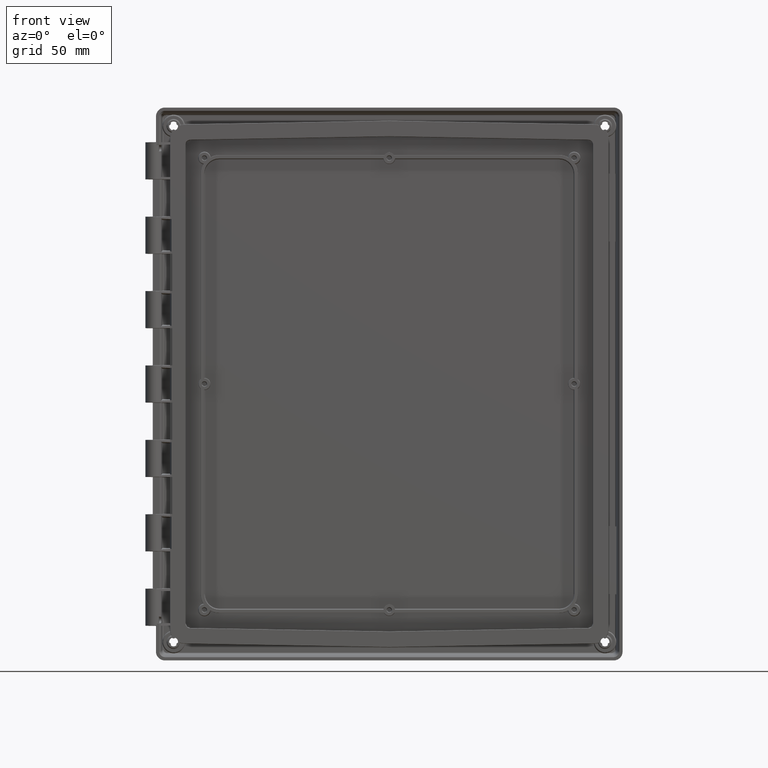
[diagram: clean part render]
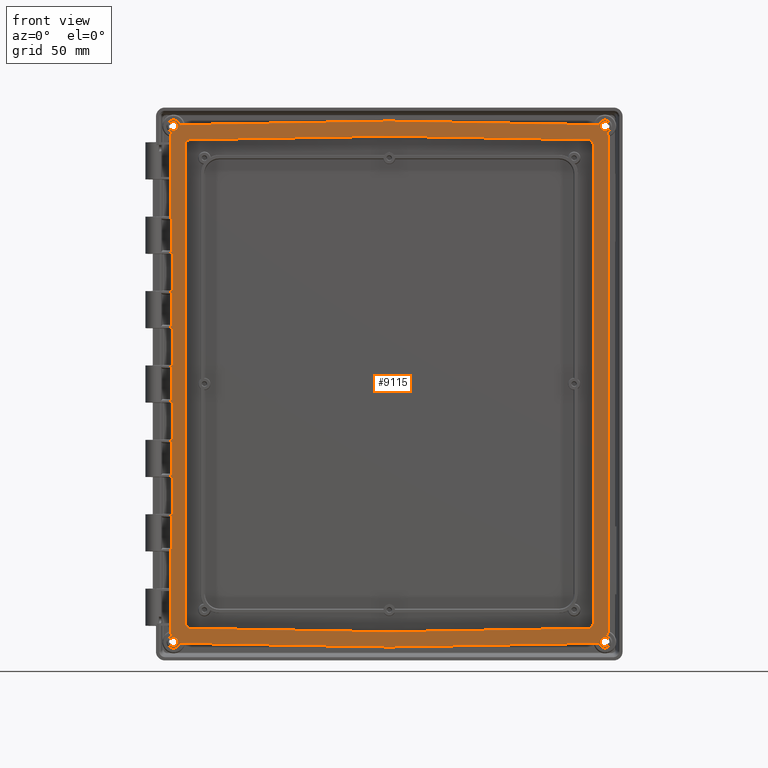
[diagram: same view with one face highlighted and labeled with its STEP entity id]
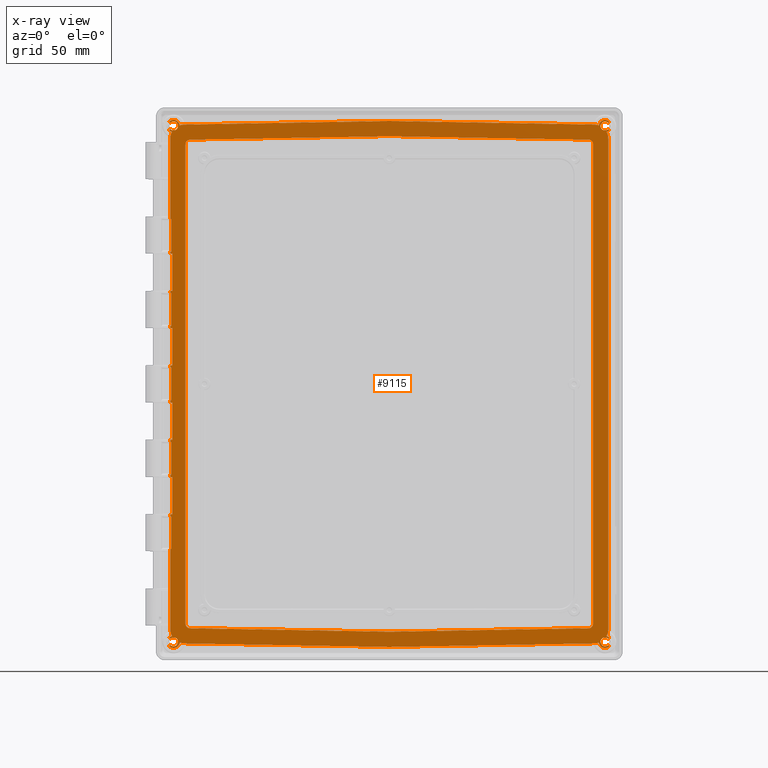
[diagram: x-ray of the same camera — body ghosted, the highlighted face saturated]
A machine part, front view. The second image highlights one B-rep face of the part: STEP entity #9115.
The next image is the same camera in x-ray: the body ghosted, the highlighted face saturated — about 0% of this face is hidden behind the body in this view.
In plain terms, the highlighted planar face has unit normal (0, -1, 0).
Its self-contained STEP definition (entity closure, byte-faithful):
#1129=DIRECTION('',(0.E0,1.082787128287E-14,1.E0));
#1130=VECTOR('',#1129,1.5E0);
#1131=CARTESIAN_POINT('',(-1.354610999578E2,-1.631822557993E-14,-1.28E2));
#1132=LINE('',#1131,#1130);
#1133=DIRECTION('',(9.998476951564E-1,0.E0,1.745240643728E-2));
#1134=VECTOR('',#1133,1.231340067071E2);
#1135=CARTESIAN_POINT('',(-1.231152528015E2,0.E0,1.510514199534E2));
#1136=LINE('',#1135,#1134);
#1137=DIRECTION('',(0.E0,0.E0,1.E0));
#1138=VECTOR('',#1137,2.961074082170E2);
#1139=CARTESIAN_POINT('',(-1.260610999578E2,0.E0,-1.480537041085E2));
#1140=LINE('',#1139,#1138);
#1141=DIRECTION('',(-9.998476951564E-1,0.E0,1.745240643728E-2));
#1142=VECTOR('',#1141,1.231340067071E2);
#1143=CARTESIAN_POINT('',(8.289665250535E-14,0.E0,-1.532004046847E2));
#1144=LINE('',#1143,#1142);
#1145=DIRECTION('',(-9.998476951564E-1,0.E0,-1.745240643728E-2));
#1146=VECTOR('',#1145,1.231340067071E2);
#1147=CARTESIAN_POINT('',(1.231152528015E2,0.E0,-1.510514199534E2));
#1148=LINE('',#1147,#1146);
#1149=DIRECTION('',(0.E0,0.E0,-1.E0));
#1150=VECTOR('',#1149,2.961074082170E2);
#1151=CARTESIAN_POINT('',(1.260610999578E2,0.E0,1.480537041085E2));
#1152=LINE('',#1151,#1150);
#1153=DIRECTION('',(9.998476951564E-1,0.E0,-1.745240643728E-2));
#1154=VECTOR('',#1153,1.231340067071E2);
#1155=CARTESIAN_POINT('',(-7.925512098457E-13,0.E0,1.532004046847E2));
#1156=LINE('',#1155,#1154);
#1157=CARTESIAN_POINT('',(1.3536E2,0.E0,1.569382623085E2));
#1158=DIRECTION('',(0.E0,-1.E0,0.E0));
#1159=DIRECTION('',(1.E0,0.E0,0.E0));
#1160=AXIS2_PLACEMENT_3D('',#1157,#1158,#1159);
#1162=DIRECTION('',(0.E0,-2.537500953473E-14,-1.E0));
#1163=VECTOR('',#1162,2.333472803848E-1);
#1164=CARTESIAN_POINT('',(1.3586E2,0.E0,1.569382623085E2));
#1165=LINE('',#1164,#1163);
#1166=DIRECTION('',(0.E0,3.552501334861E-14,1.E0));
#1167=VECTOR('',#1166,2.333472803849E-1);
#1168=CARTESIAN_POINT('',(1.3586E2,0.E0,-1.569382623085E2));
#1169=LINE('',#1168,#1167);
#1170=CARTESIAN_POINT('',(1.3536E2,0.E0,-1.569382623085E2));
#1171=DIRECTION('',(0.E0,-1.E0,0.E0));
#1172=DIRECTION('',(-6.153846153847E-1,0.E0,-7.882269819968E-1));
#1173=AXIS2_PLACEMENT_3D('',#1170,#1171,#1172);
#1175=CARTESIAN_POINT('',(1.337704113155E2,0.E0,-1.567807974419E2));
#1176=CARTESIAN_POINT('',(1.334482209406E2,0.E0,-1.567321690029E2));
#1177=CARTESIAN_POINT('',(1.328281634788E2,0.E0,-1.567482090161E2));
#1178=CARTESIAN_POINT('',(1.319277151662E2,0.E0,-1.570887051789E2));
#1179=CARTESIAN_POINT('',(1.312029897614E2,0.E0,-1.577058635423E2));
#1180=CARTESIAN_POINT('',(1.307240471865E2,0.E0,-1.585496003022E2));
#1181=CARTESIAN_POINT('',(1.306160350347E2,0.E0,-1.591402491613E2));
#1182=CARTESIAN_POINT('',(1.306109552218E2,0.E0,-1.594597203885E2));
#1184=CARTESIAN_POINT('',(1.3536E2,0.E0,-1.620617376915E2));
#1185=DIRECTION('',(0.E0,-1.E0,0.E0));
#1186=DIRECTION('',(1.E0,0.E0,5.684341886081E-14));
#1187=AXIS2_PLACEMENT_3D('',#1184,#1185,#1186);
#1189=DIRECTION('',(0.E0,0.E0,1.E0));
#1190=VECTOR('',#1189,2.333472803849E-1);
#1191=CARTESIAN_POINT('',(1.3586E2,0.E0,-1.622950849719E2));
#1192=LINE('',#1191,#1190);
#1193=DIRECTION('',(9.998476951564E-1,0.E0,1.745240643728E-2));
#1194=VECTOR('',#1193,1.268392665338E2);
#1195=CARTESIAN_POINT('',(-7.925512098457E-13,0.E0,-1.626018365683E2));
#1196=LINE('',#1195,#1194);
#1197=DIRECTION('',(9.998476951564E-1,0.E0,-1.745240643728E-2));
#1198=VECTOR('',#1197,1.266428468077E2);
#1199=CARTESIAN_POINT('',(-1.266235584888E2,0.E0,-1.603916141334E2));
#1200=LINE('',#1199,#1198);
#1201=DIRECTION('',(0.E0,-3.552501334862E-14,1.E0));
#1202=VECTOR('',#1201,2.333472803848E-1);
#1203=CARTESIAN_POINT('',(-1.3586E2,0.E0,-1.622950849719E2));
#1204=LINE('',#1203,#1202);
#1205=CARTESIAN_POINT('',(-1.3536E2,0.E0,-1.620617376915E2));
#1206=DIRECTION('',(0.E0,-1.E0,0.E0));
#1207=DIRECTION('',(6.153846153845E-1,0.E0,7.882269819970E-1));
#1208=AXIS2_PLACEMENT_3D('',#1205,#1206,#1207);
#1210=CARTESIAN_POINT('',(-1.3336E2,0.E0,-1.595E2));
#1211=DIRECTION('',(0.E0,-1.E0,0.E0));
#1212=DIRECTION('',(9.990655107185E-1,0.E0,4.322158364483E-2));
#1213=AXIS2_PLACEMENT_3D('',#1210,#1211,#1212);
#1215=CARTESIAN_POINT('',(-1.3536E2,0.E0,-1.569382623085E2));
#1216=DIRECTION('',(0.E0,-1.E0,0.E0));
#1217=DIRECTION('',(-1.E0,0.E0,-5.684341886081E-14));
#1218=AXIS2_PLACEMENT_3D('',#1215,#1216,#1217);
#1220=DIRECTION('',(0.E0,0.E0,1.E0));
#1221=VECTOR('',#1220,2.333472803849E-1);
#1222=CARTESIAN_POINT('',(-1.3586E2,0.E0,-1.569382623085E2));
#1223=LINE('',#1222,#1221);
#1224=DIRECTION('',(0.E0,0.E0,-1.E0));
#1225=VECTOR('',#1224,2.E1);
#1226=CARTESIAN_POINT('',(-1.354610999578E2,-1.631822557993E-14,-1.28E2));
#1227=LINE('',#1226,#1225);
#1228=DIRECTION('',(0.E0,0.E0,-1.E0));
#1229=VECTOR('',#1228,2.E1);
#1230=CARTESIAN_POINT('',(-1.354610999578E2,0.E0,1.48E2));
#1231=LINE('',#1230,#1229);
#1232=DIRECTION('',(0.E0,3.552501334862E-14,-1.E0));
#1233=VECTOR('',#1232,2.333472803848E-1);
#1234=CARTESIAN_POINT('',(-1.3586E2,0.E0,1.569382623085E2));
#1235=LINE('',#1234,#1233);
#1236=CARTESIAN_POINT('',(-1.3536E2,0.E0,1.569382623085E2));
#1237=DIRECTION('',(0.E0,-1.E0,0.E0));
#1238=DIRECTION('',(6.153846153846E-1,0.E0,7.882269819969E-1));
#1239=AXIS2_PLACEMENT_3D('',#1236,#1237,#1238);
#1241=CARTESIAN_POINT('',(-1.337704113155E2,0.E0,1.567807974419E2));
#1242=CARTESIAN_POINT('',(-1.334482209406E2,0.E0,1.567321690029E2));
#1243=CARTESIAN_POINT('',(-1.328281634788E2,0.E0,1.567482090161E2));
#1244=CARTESIAN_POINT('',(-1.319277151662E2,0.E0,1.570887051789E2));
#1245=CARTESIAN_POINT('',(-1.312029897614E2,0.E0,1.577058635423E2));
#1246=CARTESIAN_POINT('',(-1.307240471865E2,0.E0,1.585496003022E2));
#1247=CARTESIAN_POINT('',(-1.306160350347E2,0.E0,1.591402491613E2));
#1248=CARTESIAN_POINT('',(-1.306109552218E2,0.E0,1.594597203885E2));
#1250=CARTESIAN_POINT('',(-1.3536E2,0.E0,1.620617376915E2));
#1251=DIRECTION('',(0.E0,-1.E0,0.E0));
#1252=DIRECTION('',(-1.E0,0.E0,0.E0));
#1253=AXIS2_PLACEMENT_3D('',#1250,#1251,#1252);
#1255=DIRECTION('',(0.E0,0.E0,-1.E0));
#1256=VECTOR('',#1255,2.333472803849E-1);
#1257=CARTESIAN_POINT('',(-1.3586E2,0.E0,1.622950849719E2));
#1258=LINE('',#1257,#1256);
#1259=DIRECTION('',(-9.998476951564E-1,0.E0,-1.745240643728E-2));
#1260=VECTOR('',#1259,1.268392665338E2);
#1261=CARTESIAN_POINT('',(0.E0,0.E0,1.626018365683E2));
#1262=LINE('',#1261,#1260);
#1263=DIRECTION('',(-9.998476951564E-1,0.E0,1.745240643728E-2));
#1264=VECTOR('',#1263,1.268392665338E2);
#1265=CARTESIAN_POINT('',(1.268199482992E2,0.E0,1.603881861365E2));
#1266=LINE('',#1265,#1264);
#1267=DIRECTION('',(0.E0,0.E0,-1.E0));
#1268=VECTOR('',#1267,2.333472803849E-1);
#1269=CARTESIAN_POINT('',(1.3586E2,0.E0,1.622950849719E2));
#1270=LINE('',#1269,#1268);
#1271=CARTESIAN_POINT('',(1.3536E2,0.E0,1.620617376915E2));
#1272=DIRECTION('',(0.E0,-1.E0,0.E0));
#1273=DIRECTION('',(-6.153846153847E-1,0.E0,-7.882269819969E-1));
#1274=AXIS2_PLACEMENT_3D('',#1271,#1272,#1273);
#1276=CARTESIAN_POINT('',(1.3336E2,0.E0,1.595E2));
#1277=DIRECTION('',(0.E0,-1.E0,0.E0));
#1278=DIRECTION('',(-9.998736079999E-1,0.E0,-1.589867998299E-2));
#1279=AXIS2_PLACEMENT_3D('',#1276,#1277,#1278);
#1289=CARTESIAN_POINT('',(-1.260610999578E2,0.E0,1.480537041085E2));
#1290=CARTESIAN_POINT('',(-1.260610999578E2,0.E0,1.490358027390E2));
#1291=CARTESIAN_POINT('',(-1.253240205356E2,0.E0,1.502756740691E2));
#1292=CARTESIAN_POINT('',(-1.240972018536E2,0.E0,1.510342799689E2));
#1293=CARTESIAN_POINT('',(-1.231152528015E2,0.E0,1.510514199534E2));
#1487=CARTESIAN_POINT('',(1.231152528015E2,0.E0,1.510514199534E2));
#1488=CARTESIAN_POINT('',(1.240972018536E2,0.E0,1.510342799689E2));
#1489=CARTESIAN_POINT('',(1.253240205356E2,0.E0,1.502756740691E2));
#1490=CARTESIAN_POINT('',(1.260610999578E2,0.E0,1.490358027390E2));
#1491=CARTESIAN_POINT('',(1.260610999578E2,0.E0,1.480537041085E2));
#1505=CARTESIAN_POINT('',(1.260610999578E2,0.E0,-1.480537041085E2));
#1506=CARTESIAN_POINT('',(1.260610999578E2,0.E0,-1.490358027390E2));
#1507=CARTESIAN_POINT('',(1.253240205356E2,0.E0,-1.502756740691E2));
#1508=CARTESIAN_POINT('',(1.240972018536E2,0.E0,-1.510342799689E2));
#1509=CARTESIAN_POINT('',(1.231152528015E2,0.E0,-1.510514199534E2));
#1531=CARTESIAN_POINT('',(-1.231152528015E2,0.E0,-1.510514199534E2));
#1532=CARTESIAN_POINT('',(-1.240972018536E2,0.E0,-1.510342799689E2));
#1533=CARTESIAN_POINT('',(-1.253240205356E2,0.E0,-1.502756740691E2));
#1534=CARTESIAN_POINT('',(-1.260610999578E2,0.E0,-1.490358027390E2));
#1535=CARTESIAN_POINT('',(-1.260610999578E2,0.E0,-1.480537041085E2));
#2829=CARTESIAN_POINT('',(1.350523076923E2,0.E0,-1.616676242005E2));
#2830=CARTESIAN_POINT('',(1.348127118924E2,0.E0,-1.618546814474E2));
#2831=CARTESIAN_POINT('',(1.343015865102E2,0.E0,-1.621328706006E2));
#2832=CARTESIAN_POINT('',(1.334179866728E2,0.E0,-1.622977130184E2));
#2833=CARTESIAN_POINT('',(1.325338581723E2,0.E0,-1.621726199275E2));
#2834=CARTESIAN_POINT('',(1.317321026019E2,0.E0,-1.617753558528E2));
#2835=CARTESIAN_POINT('',(1.310961644881E2,0.E0,-1.611445971458E2));
#2836=CARTESIAN_POINT('',(1.306931902211E2,0.E0,-1.603429656091E2));
#2837=CARTESIAN_POINT('',(1.306061628792E2,0.E0,-1.597611125138E2));
#2838=CARTESIAN_POINT('',(1.306109552218E2,0.E0,-1.594597203885E2));
#2904=CARTESIAN_POINT('',(1.3336E2,0.E0,-1.595E2));
#2905=DIRECTION('',(0.E0,1.E0,0.E0));
#2906=DIRECTION('',(1.492404783669E-1,0.E0,9.888009302265E-1));
#2907=AXIS2_PLACEMENT_3D('',#2904,#2905,#2906);
#3863=CARTESIAN_POINT('',(1.268199482992E2,0.E0,1.603881861365E2));
#3864=CARTESIAN_POINT('',(1.277843344238E2,0.E0,1.603713527141E2));
#3865=CARTESIAN_POINT('',(1.287206596066E2,0.E0,1.602006653499E2));
#3866=CARTESIAN_POINT('',(1.296288934613E2,0.E0,1.598759574405E2));
#4151=DIRECTION('',(1.E0,0.E0,0.E0));
#4152=VECTOR('',#4151,8.000000000002E-1);
#4153=CARTESIAN_POINT('',(-1.354610999578E2,0.E0,-5.6E1));
#4154=LINE('',#4153,#4152);
#4175=DIRECTION('',(-1.E0,0.E0,0.E0));
#4176=VECTOR('',#4175,8.000000000001E-1);
#4177=CARTESIAN_POINT('',(-1.346610999578E2,0.E0,-3.6E1));
#4178=LINE('',#4177,#4176);
#4203=DIRECTION('',(1.894780628694E-14,0.E0,1.E0));
#4204=VECTOR('',#4203,1.5E0);
#4205=CARTESIAN_POINT('',(-1.354610999578E2,0.E0,-3.6E1));
#4206=LINE('',#4205,#4204);
#4211=DIRECTION('',(3.789561257387E-14,0.E0,1.E0));
#4212=VECTOR('',#4211,1.5E0);
#4213=CARTESIAN_POINT('',(-1.354610999578E2,0.E0,-5.75E1));
#4214=LINE('',#4213,#4212);
#4237=DIRECTION('',(1.E0,0.E0,0.E0));
#4238=VECTOR('',#4237,1.251568121427E0);
#4239=CARTESIAN_POINT('',(-1.354610999578E2,0.E0,-3.45E1));
#4240=LINE('',#4239,#4238);
#4257=DIRECTION('',(-1.E0,0.E0,0.E0));
#4258=VECTOR('',#4257,1.251568121427E0);
#4259=CARTESIAN_POINT('',(-1.342095318364E2,0.E0,-1.15E1));
#4260=LINE('',#4259,#4258);
#4299=DIRECTION('',(1.894780628694E-14,0.E0,1.E0));
#4300=VECTOR('',#4299,1.5E0);
#4301=CARTESIAN_POINT('',(-1.354610999578E2,0.E0,1.E1));
#4302=LINE('',#4301,#4300);
#4307=DIRECTION('',(3.789561257387E-14,0.E0,1.E0));
#4308=VECTOR('',#4307,1.5E0);
#4309=CARTESIAN_POINT('',(-1.354610999578E2,0.E0,-1.15E1));
#4310=LINE('',#4309,#4308);
#4333=DIRECTION('',(1.E0,0.E0,0.E0));
#4334=VECTOR('',#4333,1.251568121427E0);
#4335=CARTESIAN_POINT('',(-1.354610999578E2,0.E0,1.15E1));
#4336=LINE('',#4335,#4334);
#4353=DIRECTION('',(-1.E0,0.E0,0.E0));
#4354=VECTOR('',#4353,1.251568121427E0);
#4355=CARTESIAN_POINT('',(-1.342095318364E2,0.E0,3.45E1));
#4356=LINE('',#4355,#4354);
#4395=DIRECTION('',(0.E0,0.E0,1.E0));
#4396=VECTOR('',#4395,1.5E0);
#4397=CARTESIAN_POINT('',(-1.354610999578E2,0.E0,5.6E1));
#4398=LINE('',#4397,#4396);
#4403=DIRECTION('',(5.684341886081E-14,0.E0,1.E0));
#4404=VECTOR('',#4403,1.5E0);
#4405=CARTESIAN_POINT('',(-1.354610999578E2,0.E0,3.45E1));
#4406=LINE('',#4405,#4404);
#4429=DIRECTION('',(1.E0,0.E0,0.E0));
#4430=VECTOR('',#4429,1.251568121427E0);
#4431=CARTESIAN_POINT('',(-1.354610999578E2,0.E0,5.75E1));
#4432=LINE('',#4431,#4430);
#4449=DIRECTION('',(-1.E0,0.E0,0.E0));
#4450=VECTOR('',#4449,1.251568121427E0);
#4451=CARTESIAN_POINT('',(-1.342095318364E2,0.E0,8.05E1));
#4452=LINE('',#4451,#4450);
#4491=DIRECTION('',(-9.473903143468E-14,-1.181955202527E-14,1.E0));
#4492=VECTOR('',#4491,1.5E0);
#4493=CARTESIAN_POINT('',(-1.354610999578E2,0.E0,1.02E2));
#4494=LINE('',#4493,#4492);
#4499=DIRECTION('',(3.789561257387E-14,0.E0,1.E0));
#4500=VECTOR('',#4499,1.5E0);
#4501=CARTESIAN_POINT('',(-1.354610999578E2,0.E0,8.05E1));
#4502=LINE('',#4501,#4500);
#4567=DIRECTION('',(3.789561257387E-14,0.E0,1.E0));
#4568=VECTOR('',#4567,1.5E0);
#4569=CARTESIAN_POINT('',(-1.354610999578E2,0.E0,1.265E2));
#4570=LINE('',#4569,#4568);
#4790=CARTESIAN_POINT('',(-1.296288934613E2,0.E0,1.598759574405E2));
#4791=CARTESIAN_POINT('',(-1.287206596066E2,0.E0,1.602006653499E2));
#4792=CARTESIAN_POINT('',(-1.277843344238E2,0.E0,1.603713527141E2));
#4793=CARTESIAN_POINT('',(-1.268199482992E2,0.E0,1.603881861365E2));
#4814=CARTESIAN_POINT('',(-1.3336E2,0.E0,1.595E2));
#4815=DIRECTION('',(0.E0,-1.E0,0.E0));
#4816=DIRECTION('',(-6.666666666667E-1,0.E0,-7.453559924999E-1));
#4817=AXIS2_PLACEMENT_3D('',#4814,#4815,#4816);
#4819=CARTESIAN_POINT('',(-1.3336E2,0.E0,1.595E2));
#4820=DIRECTION('',(0.E0,-1.E0,0.E0));
#4821=DIRECTION('',(9.949617436463E-1,0.E0,1.002553174664E-1));
#4822=AXIS2_PLACEMENT_3D('',#4819,#4820,#4821);
#4854=CARTESIAN_POINT('',(-1.350523076923E2,0.E0,1.616676242005E2));
#4855=CARTESIAN_POINT('',(-1.348127118924E2,0.E0,1.618546814474E2));
#4856=CARTESIAN_POINT('',(-1.343015865102E2,0.E0,1.621328706006E2));
#4857=CARTESIAN_POINT('',(-1.334179866728E2,0.E0,1.622977130184E2));
#4858=CARTESIAN_POINT('',(-1.325338581723E2,0.E0,1.621726199275E2));
#4859=CARTESIAN_POINT('',(-1.317321026019E2,0.E0,1.617753558528E2));
#4860=CARTESIAN_POINT('',(-1.310961644881E2,0.E0,1.611445971458E2));
#4861=CARTESIAN_POINT('',(-1.306931902211E2,0.E0,1.603429656091E2));
#4862=CARTESIAN_POINT('',(-1.306061628792E2,0.E0,1.597611125138E2));
#4863=CARTESIAN_POINT('',(-1.306109552218E2,0.E0,1.594597203885E2));
#4929=CARTESIAN_POINT('',(-1.3336E2,0.E0,1.595E2));
#4930=DIRECTION('',(0.E0,1.E0,0.E0));
#4931=DIRECTION('',(-1.492404783669E-1,0.E0,-9.888009302265E-1));
#4932=AXIS2_PLACEMENT_3D('',#4929,#4930,#4931);
#4995=CARTESIAN_POINT('',(1.3336E2,0.E0,1.595E2));
#4996=DIRECTION('',(0.E0,1.E0,0.E0));
#4997=DIRECTION('',(6.153846153846E-1,0.E0,-7.882269819969E-1));
#4998=AXIS2_PLACEMENT_3D('',#4995,#4996,#4997);
#5060=CARTESIAN_POINT('',(1.3336E2,0.E0,1.595E2));
#5061=DIRECTION('',(0.E0,1.E0,0.E0));
#5062=DIRECTION('',(-9.998736079999E-1,0.E0,-1.589867998299E-2));
#5063=AXIS2_PLACEMENT_3D('',#5060,#5061,#5062);
#5120=CARTESIAN_POINT('',(-1.3336E2,0.E0,-1.595E2));
#5121=DIRECTION('',(0.E0,1.E0,0.E0));
#5122=DIRECTION('',(-6.153846153846E-1,0.E0,7.882269819969E-1));
#5123=AXIS2_PLACEMENT_3D('',#5120,#5121,#5122);
#5187=CARTESIAN_POINT('',(-1.3336E2,0.E0,-1.595E2));
#5188=DIRECTION('',(0.E0,1.E0,0.E0));
#5189=DIRECTION('',(9.990655107185E-1,0.E0,4.322158364483E-2));
#5190=AXIS2_PLACEMENT_3D('',#5187,#5188,#5189);
#5209=CARTESIAN_POINT('',(-1.3336E2,0.E0,-1.595E2));
#5210=DIRECTION('',(0.E0,-1.E0,0.E0));
#5211=DIRECTION('',(-6.666666666667E-1,0.E0,-7.453559924999E-1));
#5212=AXIS2_PLACEMENT_3D('',#5209,#5210,#5211);
#5214=CARTESIAN_POINT('',(-1.3336E2,0.E0,-1.595E2));
#5215=DIRECTION('',(0.E0,-1.E0,0.E0));
#5216=DIRECTION('',(-2.441091685072E-1,0.E0,9.697477578477E-1));
#5217=AXIS2_PLACEMENT_3D('',#5214,#5215,#5216);
#5246=CARTESIAN_POINT('',(-1.354610999578E2,0.E0,-1.513984665988E2));
#5247=CARTESIAN_POINT('',(-1.354610999578E2,0.E0,-1.529917764422E2));
#5248=CARTESIAN_POINT('',(-1.350660714845E2,0.E0,-1.544801564603E2));
#5249=CARTESIAN_POINT('',(-1.342754093819E2,0.E0,-1.558634459081E2));
#5285=CARTESIAN_POINT('',(-1.296237725605E2,0.E0,-1.598210989258E2));
#5286=CARTESIAN_POINT('',(-1.286564538049E2,0.E0,-1.601834791242E2));
#5287=CARTESIAN_POINT('',(-1.276563701762E2,0.E0,-1.603735863384E2));
#5288=CARTESIAN_POINT('',(-1.266235584888E2,0.E0,-1.603916141334E2));
#5298=DIRECTION('',(0.E0,0.E0,1.E0));
#5299=VECTOR('',#5298,1.898466598836E0);
#5300=CARTESIAN_POINT('',(-1.354610999578E2,0.E0,-1.513984665988E2));
#5301=LINE('',#5300,#5299);
#5323=DIRECTION('',(-1.894780628694E-14,0.E0,1.E0));
#5324=VECTOR('',#5323,1.5E0);
#5325=CARTESIAN_POINT('',(-1.354610999578E2,0.E0,-1.495E2));
#5326=LINE('',#5325,#5324);
#5418=CARTESIAN_POINT('',(1.296288934613E2,0.E0,-1.598759574405E2));
#5419=CARTESIAN_POINT('',(1.287206596066E2,0.E0,-1.602006653499E2));
#5420=CARTESIAN_POINT('',(1.277843344238E2,0.E0,-1.603713527141E2));
#5421=CARTESIAN_POINT('',(1.268199482992E2,0.E0,-1.603881861365E2));
#5676=CARTESIAN_POINT('',(1.354610999578E2,0.E0,-1.515948863249E2));
#5677=CARTESIAN_POINT('',(1.354610999578E2,0.E0,-1.531205992297E2));
#5678=CARTESIAN_POINT('',(1.350896464781E2,0.E0,-1.545496844750E2));
#5679=CARTESIAN_POINT('',(1.343461773515E2,0.E0,-1.558819958221E2));
#5701=CARTESIAN_POINT('',(1.3336E2,0.E0,-1.595E2));
#5702=DIRECTION('',(0.E0,-1.E0,0.E0));
#5703=DIRECTION('',(6.666666666667E-1,0.E0,7.453559924999E-1));
#5704=AXIS2_PLACEMENT_3D('',#5701,#5702,#5703);
#5706=CARTESIAN_POINT('',(1.3336E2,0.E0,-1.595E2));
#5707=DIRECTION('',(0.E0,-1.E0,0.E0));
#5708=DIRECTION('',(-9.949617436463E-1,0.E0,-1.002553174664E-1));
#5709=AXIS2_PLACEMENT_3D('',#5706,#5707,#5708);
#5752=DIRECTION('',(0.E0,0.E0,-1.E0));
#5753=VECTOR('',#5752,3.031897726499E2);
#5754=CARTESIAN_POINT('',(1.354610999578E2,0.E0,1.515948863249E2));
#5755=LINE('',#5754,#5753);
#5845=CARTESIAN_POINT('',(1.343461773515E2,0.E0,1.558819958221E2));
#5846=CARTESIAN_POINT('',(1.350896464781E2,0.E0,1.545496844750E2));
#5847=CARTESIAN_POINT('',(1.354610999578E2,0.E0,1.531205992297E2));
#5848=CARTESIAN_POINT('',(1.354610999578E2,0.E0,1.515948863249E2));
#5868=CARTESIAN_POINT('',(1.3336E2,0.E0,1.595E2));
#5869=DIRECTION('',(0.E0,-1.E0,0.E0));
#5870=DIRECTION('',(6.666666666667E-1,0.E0,7.453559924999E-1));
#5871=AXIS2_PLACEMENT_3D('',#5868,#5869,#5870);
#5873=CARTESIAN_POINT('',(1.3336E2,0.E0,1.595E2));
#5874=DIRECTION('',(0.E0,-1.E0,0.E0));
#5875=DIRECTION('',(2.629806270758E-1,0.E0,-9.648011141074E-1));
#5876=AXIS2_PLACEMENT_3D('',#5873,#5874,#5875);
#6053=CARTESIAN_POINT('',(-1.354610999578E2,0.E0,1.515948863249E2));
#6054=CARTESIAN_POINT('',(-1.354610999578E2,0.E0,1.531205992297E2));
#6055=CARTESIAN_POINT('',(-1.350896464781E2,0.E0,1.545496844750E2));
#6056=CARTESIAN_POINT('',(-1.343461773515E2,0.E0,1.558819958221E2));
#6082=DIRECTION('',(0.E0,1.029909078822E-14,1.E0));
#6083=VECTOR('',#6082,2.094886324935E0);
#6084=CARTESIAN_POINT('',(-1.354610999578E2,-1.777516760943E-14,1.495E2));
#6085=LINE('',#6084,#6083);
#6107=DIRECTION('',(-1.136868377216E-13,-1.417695416206E-14,1.E0));
#6108=VECTOR('',#6107,1.5E0);
#6109=CARTESIAN_POINT('',(-1.354610999578E2,0.E0,1.48E2));
#6110=LINE('',#6109,#6108);
#6161=DIRECTION('',(0.E0,0.E0,1.E0));
#6162=VECTOR('',#6161,2.3E1);
#6163=CARTESIAN_POINT('',(-1.354610999578E2,-1.425988108595E-14,1.035E2));
#6164=LINE('',#6163,#6162);
#6183=DIRECTION('',(-1.E0,0.E0,0.E0));
#6184=VECTOR('',#6183,8.000000000001E-1);
#6185=CARTESIAN_POINT('',(-1.346610999578E2,0.E0,1.02E2));
#6186=LINE('',#6185,#6184);
#6213=DIRECTION('',(1.E0,0.E0,0.E0));
#6214=VECTOR('',#6213,8.000000000001E-1);
#6215=CARTESIAN_POINT('',(-1.354610999578E2,0.E0,8.2E1));
#6216=LINE('',#6215,#6214);
#6229=DIRECTION('',(0.E0,0.E0,1.E0));
#6230=VECTOR('',#6229,2.E1);
#6231=CARTESIAN_POINT('',(-1.346610999578E2,0.E0,8.2E1));
#6232=LINE('',#6231,#6230);
#6245=DIRECTION('',(0.E0,0.E0,1.E0));
#6246=VECTOR('',#6245,2.3E1);
#6247=CARTESIAN_POINT('',(-1.342095318364E2,0.E0,5.75E1));
#6248=LINE('',#6247,#6246);
#6275=DIRECTION('',(-1.E0,0.E0,0.E0));
#6276=VECTOR('',#6275,8.000000000001E-1);
#6277=CARTESIAN_POINT('',(-1.346610999578E2,0.E0,5.6E1));
#6278=LINE('',#6277,#6276);
#6305=DIRECTION('',(1.E0,0.E0,0.E0));
#6306=VECTOR('',#6305,8.000000000001E-1);
#6307=CARTESIAN_POINT('',(-1.354610999578E2,0.E0,3.6E1));
#6308=LINE('',#6307,#6306);
#6321=DIRECTION('',(0.E0,0.E0,1.E0));
#6322=VECTOR('',#6321,2.E1);
#6323=CARTESIAN_POINT('',(-1.346610999578E2,0.E0,3.6E1));
#6324=LINE('',#6323,#6322);
#6337=DIRECTION('',(0.E0,0.E0,1.E0));
#6338=VECTOR('',#6337,2.3E1);
#6339=CARTESIAN_POINT('',(-1.342095318364E2,0.E0,1.15E1));
#6340=LINE('',#6339,#6338);
#6367=DIRECTION('',(-1.E0,0.E0,0.E0));
#6368=VECTOR('',#6367,8.000000000001E-1);
#6369=CARTESIAN_POINT('',(-1.346610999578E2,0.E0,1.E1));
#6370=LINE('',#6369,#6368);
#6397=DIRECTION('',(1.E0,0.E0,0.E0));
#6398=VECTOR('',#6397,8.000000000002E-1);
#6399=CARTESIAN_POINT('',(-1.354610999578E2,0.E0,-1.E1));
#6400=LINE('',#6399,#6398);
#6413=DIRECTION('',(0.E0,0.E0,1.E0));
#6414=VECTOR('',#6413,2.E1);
#6415=CARTESIAN_POINT('',(-1.346610999578E2,0.E0,-1.E1));
#6416=LINE('',#6415,#6414);
#6429=DIRECTION('',(0.E0,0.E0,1.E0));
#6430=VECTOR('',#6429,2.3E1);
#6431=CARTESIAN_POINT('',(-1.342095318364E2,0.E0,-3.45E1));
#6432=LINE('',#6431,#6430);
#6457=DIRECTION('',(-1.E0,0.E0,0.E0));
#6458=VECTOR('',#6457,1.251568121427E0);
#6459=CARTESIAN_POINT('',(-1.342095318364E2,0.E0,-5.75E1));
#6460=LINE('',#6459,#6458);
#6517=DIRECTION('',(1.E0,0.E0,0.E0));
#6518=VECTOR('',#6517,1.251568121427E0);
#6519=CARTESIAN_POINT('',(-1.354610999578E2,0.E0,-8.05E1));
#6520=LINE('',#6519,#6518);
#6525=DIRECTION('',(1.894780628694E-14,0.E0,1.E0));
#6526=VECTOR('',#6525,1.5E0);
#6527=CARTESIAN_POINT('',(-1.354610999578E2,0.E0,-8.2E1));
#6528=LINE('',#6527,#6526);
#6533=DIRECTION('',(5.684341886081E-14,0.E0,1.E0));
#6534=VECTOR('',#6533,1.5E0);
#6535=CARTESIAN_POINT('',(-1.354610999578E2,0.E0,-1.035E2));
#6536=LINE('',#6535,#6534);
#6551=DIRECTION('',(-1.E0,0.E0,0.E0));
#6552=VECTOR('',#6551,8.000000000001E-1);
#6553=CARTESIAN_POINT('',(-1.346610999578E2,0.E0,-8.2E1));
#6554=LINE('',#6553,#6552);
#6581=DIRECTION('',(1.E0,0.E0,0.E0));
#6582=VECTOR('',#6581,8.000000000002E-1);
#6583=CARTESIAN_POINT('',(-1.354610999578E2,0.E0,-1.02E2));
#6584=LINE('',#6583,#6582);
#6597=DIRECTION('',(0.E0,0.E0,1.E0));
#6598=VECTOR('',#6597,2.E1);
#6599=CARTESIAN_POINT('',(-1.346610999578E2,0.E0,-1.02E2));
#6600=LINE('',#6599,#6598);
#6663=DIRECTION('',(0.E0,0.E0,1.E0));
#6664=VECTOR('',#6663,2.3E1);
#6665=CARTESIAN_POINT('',(-1.354610999578E2,0.E0,-1.265E2));
#6666=LINE('',#6665,#6664);
#6683=DIRECTION('',(0.E0,0.E0,1.E0));
#6684=VECTOR('',#6683,2.3E1);
#6685=CARTESIAN_POINT('',(-1.342095318364E2,0.E0,-8.05E1));
#6686=LINE('',#6685,#6684);
#6695=DIRECTION('',(0.E0,0.E0,1.E0));
#6696=VECTOR('',#6695,2.E1);
#6697=CARTESIAN_POINT('',(-1.346610999578E2,0.E0,-5.6E1));
#6698=LINE('',#6697,#6696);
#6912=CARTESIAN_POINT('',(-1.354610999578E2,0.E0,-1.E1));
#6914=VERTEX_POINT('',#6912);
#6916=CARTESIAN_POINT('',(-1.354610999578E2,0.E0,1.E1));
#6918=VERTEX_POINT('',#6916);
#6920=CARTESIAN_POINT('',(-1.354610999578E2,0.E0,5.6E1));
#6922=VERTEX_POINT('',#6920);
#6924=CARTESIAN_POINT('',(-1.354610999578E2,0.E0,3.6E1));
#6926=VERTEX_POINT('',#6924);
#6928=CARTESIAN_POINT('',(-1.354610999578E2,0.E0,1.02E2));
#6930=VERTEX_POINT('',#6928);
#6936=CARTESIAN_POINT('',(-1.354610999578E2,0.E0,8.2E1));
#6938=VERTEX_POINT('',#6936);
#7016=CARTESIAN_POINT('',(-1.354610999578E2,0.E0,-1.02E2));
#7017=CARTESIAN_POINT('',(-1.346610999578E2,0.E0,-1.02E2));
#7018=VERTEX_POINT('',#7016);
#7019=VERTEX_POINT('',#7017);
#7020=CARTESIAN_POINT('',(-1.354610999578E2,0.E0,-3.45E1));
#7021=CARTESIAN_POINT('',(-1.342095318364E2,0.E0,-3.45E1));
#7022=VERTEX_POINT('',#7020);
#7023=VERTEX_POINT('',#7021);
#7024=CARTESIAN_POINT('',(-1.354610999578E2,0.E0,-3.6E1));
#7025=VERTEX_POINT('',#7024);
#7026=CARTESIAN_POINT('',(-1.346610999578E2,0.E0,-3.6E1));
#7027=VERTEX_POINT('',#7026);
#7028=CARTESIAN_POINT('',(-1.346610999578E2,0.E0,-5.6E1));
#7029=VERTEX_POINT('',#7028);
#7030=CARTESIAN_POINT('',(-1.354610999578E2,0.E0,-5.6E1));
#7031=VERTEX_POINT('',#7030);
#7032=CARTESIAN_POINT('',(-1.346610999578E2,0.E0,-1.E1));
#7033=CARTESIAN_POINT('',(-1.346610999578E2,0.E0,1.E1));
#7034=VERTEX_POINT('',#7032);
#7035=VERTEX_POINT('',#7033);
#7036=CARTESIAN_POINT('',(-1.354610999578E2,0.E0,-1.15E1));
#7037=VERTEX_POINT('',#7036);
#7038=CARTESIAN_POINT('',(-1.342095318364E2,0.E0,-1.15E1));
#7039=VERTEX_POINT('',#7038);
#7040=CARTESIAN_POINT('',(-1.346610999578E2,0.E0,1.02E2));
#7041=VERTEX_POINT('',#7040);
#7042=CARTESIAN_POINT('',(-1.346610999578E2,0.E0,8.2E1));
#7043=VERTEX_POINT('',#7042);
#7044=CARTESIAN_POINT('',(-1.354610999578E2,0.E0,8.05E1));
#7045=VERTEX_POINT('',#7044);
#7046=CARTESIAN_POINT('',(-1.342095318364E2,0.E0,8.05E1));
#7047=VERTEX_POINT('',#7046);
#7048=CARTESIAN_POINT('',(-1.342095318364E2,0.E0,5.75E1));
#7049=VERTEX_POINT('',#7048);
#7050=CARTESIAN_POINT('',(-1.354610999578E2,0.E0,5.75E1));
#7051=VERTEX_POINT('',#7050);
#7052=CARTESIAN_POINT('',(-1.346610999578E2,0.E0,5.6E1));
#7053=VERTEX_POINT('',#7052);
#7054=CARTESIAN_POINT('',(-1.346610999578E2,0.E0,3.6E1));
#7055=VERTEX_POINT('',#7054);
#7056=CARTESIAN_POINT('',(-1.354610999578E2,0.E0,3.45E1));
#7057=VERTEX_POINT('',#7056);
#7058=CARTESIAN_POINT('',(-1.342095318364E2,0.E0,3.45E1));
#7059=VERTEX_POINT('',#7058);
#7060=CARTESIAN_POINT('',(-1.342095318364E2,0.E0,1.15E1));
#7061=VERTEX_POINT('',#7060);
#7062=CARTESIAN_POINT('',(-1.354610999578E2,0.E0,1.15E1));
#7063=VERTEX_POINT('',#7062);
#7064=CARTESIAN_POINT('',(-1.346610999578E2,0.E0,-8.2E1));
#7065=CARTESIAN_POINT('',(-1.354610999578E2,0.E0,-8.2E1));
#7066=VERTEX_POINT('',#7064);
#7067=VERTEX_POINT('',#7065);
#7068=CARTESIAN_POINT('',(-1.354610999578E2,0.E0,-8.05E1));
#7069=CARTESIAN_POINT('',(-1.342095318364E2,0.E0,-8.05E1));
#7070=VERTEX_POINT('',#7068);
#7071=VERTEX_POINT('',#7069);
#7072=CARTESIAN_POINT('',(-1.354610999578E2,0.E0,-5.75E1));
#7073=VERTEX_POINT('',#7072);
#7074=CARTESIAN_POINT('',(-1.342095318364E2,0.E0,-5.75E1));
#7075=VERTEX_POINT('',#7074);
#7228=CARTESIAN_POINT('',(1.306103475780E2,0.E0,1.594562786300E2));
#7229=CARTESIAN_POINT('',(1.337704113155E2,0.E0,1.567807974419E2));
#7230=VERTEX_POINT('',#7228);
#7231=VERTEX_POINT('',#7229);
#7236=VERTEX_POINT('',#1175);
#7237=VERTEX_POINT('',#1182);
#7238=CARTESIAN_POINT('',(-1.306125698455E2,0.E0,-1.593811406450E2));
#7239=CARTESIAN_POINT('',(-1.336827811179E2,0.E0,-1.567690089070E2));
#7240=VERTEX_POINT('',#7238);
#7241=VERTEX_POINT('',#7239);
#7242=VERTEX_POINT('',#1241);
#7243=VERTEX_POINT('',#1248);
#7478=CARTESIAN_POINT('',(-1.354610999578E2,-1.631822557993E-14,-1.28E2));
#7479=VERTEX_POINT('',#7478);
#7480=CARTESIAN_POINT('',(-1.354610999578E2,0.E0,1.48E2));
#7481=VERTEX_POINT('',#7480);
#7502=CARTESIAN_POINT('',(-1.354610999578E2,0.E0,-1.035E2));
#7503=VERTEX_POINT('',#7502);
#7504=CARTESIAN_POINT('',(-1.354610999578E2,0.E0,-1.265E2));
#7505=VERTEX_POINT('',#7504);
#7506=CARTESIAN_POINT('',(-7.925512098457E-13,0.E0,-1.626018365683E2));
#7507=CARTESIAN_POINT('',(1.268199482992E2,0.E0,-1.603881861365E2));
#7508=VERTEX_POINT('',#7506);
#7509=VERTEX_POINT('',#7507);
#7510=CARTESIAN_POINT('',(-1.354610999578E2,-1.777516760943E-14,1.495E2));
#7511=CARTESIAN_POINT('',(-1.354610999578E2,0.E0,1.515948863249E2));
#7512=VERTEX_POINT('',#7510);
#7513=VERTEX_POINT('',#7511);
#7514=CARTESIAN_POINT('',(1.268199482992E2,0.E0,1.603881861365E2));
#7515=CARTESIAN_POINT('',(0.E0,0.E0,1.626018365683E2));
#7516=VERTEX_POINT('',#7514);
#7517=VERTEX_POINT('',#7515);
#7518=CARTESIAN_POINT('',(-1.268199482992E2,0.E0,1.603881861365E2));
#7519=VERTEX_POINT('',#7518);
#7520=CARTESIAN_POINT('',(-1.354610999578E2,0.E0,1.28E2));
#7521=VERTEX_POINT('',#7520);
#7522=CARTESIAN_POINT('',(-1.354610999578E2,0.E0,1.265E2));
#7523=VERTEX_POINT('',#7522);
#7524=CARTESIAN_POINT('',(-1.354610999578E2,-1.425988108595E-14,1.035E2));
#7525=VERTEX_POINT('',#7524);
#7526=CARTESIAN_POINT('',(1.354610999578E2,0.E0,1.515948863249E2));
#7527=CARTESIAN_POINT('',(1.354610999578E2,0.E0,-1.515948863249E2));
#7528=VERTEX_POINT('',#7526);
#7529=VERTEX_POINT('',#7527);
#7530=CARTESIAN_POINT('',(-1.354610999578E2,0.E0,-1.48E2));
#7531=VERTEX_POINT('',#7530);
#7532=CARTESIAN_POINT('',(-1.354610999578E2,0.E0,-1.495E2));
#7533=VERTEX_POINT('',#7532);
#7546=CARTESIAN_POINT('',(-1.266235584888E2,0.E0,-1.603916141334E2));
#7547=VERTEX_POINT('',#7546);
#7548=CARTESIAN_POINT('',(-1.354610999578E2,0.E0,-1.513984665988E2));
#7549=VERTEX_POINT('',#7548);
#7550=CARTESIAN_POINT('',(-7.925512098457E-13,0.E0,1.532004046847E2));
#7552=VERTEX_POINT('',#7550);
#7554=CARTESIAN_POINT('',(8.289665250535E-14,0.E0,-1.532004046847E2));
#7556=VERTEX_POINT('',#7554);
#7646=VERTEX_POINT('',#5679);
#7647=VERTEX_POINT('',#5418);
#7648=VERTEX_POINT('',#5845);
#7649=VERTEX_POINT('',#4790);
#7650=VERTEX_POINT('',#6056);
#7651=VERTEX_POINT('',#3866);
#7652=VERTEX_POINT('',#5249);
#7653=VERTEX_POINT('',#5285);
#7660=CARTESIAN_POINT('',(1.231152528015E2,0.E0,-1.510514199534E2));
#7661=VERTEX_POINT('',#7660);
#7662=VERTEX_POINT('',#1505);
#7663=CARTESIAN_POINT('',(-1.231152528015E2,0.E0,-1.510514199534E2));
#7664=VERTEX_POINT('',#7663);
#7665=VERTEX_POINT('',#1535);
#7666=CARTESIAN_POINT('',(1.231152528015E2,0.E0,1.510514199534E2));
#7667=VERTEX_POINT('',#7666);
#7668=CARTESIAN_POINT('',(1.260610999578E2,0.E0,1.480537041085E2));
#7669=VERTEX_POINT('',#7668);
#7670=CARTESIAN_POINT('',(-1.231152528015E2,0.E0,1.510514199534E2));
#7671=VERTEX_POINT('',#7670);
#7672=CARTESIAN_POINT('',(-1.260610999578E2,0.E0,1.480537041085E2));
#7673=VERTEX_POINT('',#7672);
#8062=CARTESIAN_POINT('',(1.3586E2,0.E0,1.622950849719E2));
#8064=VERTEX_POINT('',#8062);
#8066=CARTESIAN_POINT('',(1.3586E2,0.E0,1.567049150281E2));
#8068=VERTEX_POINT('',#8066);
#8070=CARTESIAN_POINT('',(1.3586E2,0.E0,-1.567049150281E2));
#8072=VERTEX_POINT('',#8070);
#8074=CARTESIAN_POINT('',(1.3586E2,0.E0,-1.622950849719E2));
#8076=VERTEX_POINT('',#8074);
#8078=CARTESIAN_POINT('',(-1.3586E2,0.E0,-1.622950849719E2));
#8080=VERTEX_POINT('',#8078);
#8082=CARTESIAN_POINT('',(-1.3586E2,0.E0,-1.567049150281E2));
#8084=VERTEX_POINT('',#8082);
#8086=CARTESIAN_POINT('',(-1.3586E2,0.E0,1.567049150281E2));
#8088=VERTEX_POINT('',#8086);
#8090=CARTESIAN_POINT('',(-1.3586E2,0.E0,1.622950849719E2));
#8092=VERTEX_POINT('',#8090);
#8094=CARTESIAN_POINT('',(1.3586E2,0.E0,1.569382623085E2));
#8096=VERTEX_POINT('',#8094);
#8098=CARTESIAN_POINT('',(1.350523076923E2,0.E0,1.573323757995E2));
#8099=VERTEX_POINT('',#8098);
#8102=CARTESIAN_POINT('',(1.350523076923E2,0.E0,1.616676242005E2));
#8103=CARTESIAN_POINT('',(1.3586E2,0.E0,1.620617376915E2));
#8104=VERTEX_POINT('',#8102);
#8105=VERTEX_POINT('',#8103);
#8110=CARTESIAN_POINT('',(-1.350523076923E2,0.E0,1.573323757995E2));
#8111=CARTESIAN_POINT('',(-1.3586E2,0.E0,1.569382623085E2));
#8112=VERTEX_POINT('',#8110);
#8113=VERTEX_POINT('',#8111);
#8118=CARTESIAN_POINT('',(-1.3586E2,0.E0,1.620617376915E2));
#8120=VERTEX_POINT('',#8118);
#8122=CARTESIAN_POINT('',(-1.350523076923E2,0.E0,1.616676242005E2));
#8123=VERTEX_POINT('',#8122);
#8126=CARTESIAN_POINT('',(1.3586E2,0.E0,-1.620617376915E2));
#8127=VERTEX_POINT('',#8126);
#8128=CARTESIAN_POINT('',(1.3586E2,0.E0,-1.569382623085E2));
#8129=VERTEX_POINT('',#8128);
#8130=CARTESIAN_POINT('',(-1.3586E2,0.E0,-1.620617376915E2));
#8131=VERTEX_POINT('',#8130);
#8132=CARTESIAN_POINT('',(-1.3586E2,0.E0,-1.569382623085E2));
#8133=VERTEX_POINT('',#8132);
#8150=CARTESIAN_POINT('',(1.350523076923E2,0.E0,-1.616676242005E2));
#8151=VERTEX_POINT('',#8150);
#8152=CARTESIAN_POINT('',(1.350523076923E2,0.E0,-1.573323757995E2));
#8153=VERTEX_POINT('',#8152);
#8154=CARTESIAN_POINT('',(-1.350523076923E2,0.E0,-1.616676242005E2));
#8155=VERTEX_POINT('',#8154);
#8156=CARTESIAN_POINT('',(-1.350523076923E2,0.E0,-1.573323757995E2));
#8157=VERTEX_POINT('',#8156);
#8895=CARTESIAN_POINT('',(1.354610999578E2,0.E0,-1.602373542733E2));
#8896=DIRECTION('',(0.E0,-1.E0,0.E0));
#8897=DIRECTION('',(0.E0,0.E0,-1.E0));
#8898=AXIS2_PLACEMENT_3D('',#8895,#8896,#8897);
#8899=PLANE('',#8898);
#8901=ORIENTED_EDGE('',*,*,#8900,.F.);
#8903=ORIENTED_EDGE('',*,*,#8902,.T.);
#8905=ORIENTED_EDGE('',*,*,#8904,.F.);
#8907=ORIENTED_EDGE('',*,*,#8906,.T.);
#8909=ORIENTED_EDGE('',*,*,#8908,.T.);
#8911=ORIENTED_EDGE('',*,*,#8910,.T.);
#8913=ORIENTED_EDGE('',*,*,#8912,.F.);
#8915=ORIENTED_EDGE('',*,*,#8914,.F.);
#8917=ORIENTED_EDGE('',*,*,#8916,.F.);
#8919=ORIENTED_EDGE('',*,*,#8918,.F.);
#8921=ORIENTED_EDGE('',*,*,#8920,.T.);
#8923=ORIENTED_EDGE('',*,*,#8922,.F.);
#8925=ORIENTED_EDGE('',*,*,#8924,.F.);
#8927=ORIENTED_EDGE('',*,*,#8926,.F.);
#8929=ORIENTED_EDGE('',*,*,#8928,.F.);
#8931=ORIENTED_EDGE('',*,*,#8930,.T.);
#8933=ORIENTED_EDGE('',*,*,#8932,.F.);
#8935=ORIENTED_EDGE('',*,*,#8934,.F.);
#8937=ORIENTED_EDGE('',*,*,#8936,.F.);
#8939=ORIENTED_EDGE('',*,*,#8938,.F.);
#8941=ORIENTED_EDGE('',*,*,#8940,.T.);
#8943=ORIENTED_EDGE('',*,*,#8942,.F.);
#8945=ORIENTED_EDGE('',*,*,#8944,.F.);
#8947=ORIENTED_EDGE('',*,*,#8946,.T.);
#8949=ORIENTED_EDGE('',*,*,#8948,.F.);
#8951=ORIENTED_EDGE('',*,*,#8950,.F.);
#8953=ORIENTED_EDGE('',*,*,#8952,.T.);
#8955=ORIENTED_EDGE('',*,*,#8954,.F.);
#8957=ORIENTED_EDGE('',*,*,#8956,.F.);
#8959=ORIENTED_EDGE('',*,*,#8958,.T.);
#8961=ORIENTED_EDGE('',*,*,#8960,.T.);
#8963=ORIENTED_EDGE('',*,*,#8962,.F.);
#8964=ORIENTED_EDGE('',*,*,#8884,.T.);
#8966=ORIENTED_EDGE('',*,*,#8965,.T.);
#8968=ORIENTED_EDGE('',*,*,#8967,.T.);
#8970=ORIENTED_EDGE('',*,*,#8969,.T.);
#8972=ORIENTED_EDGE('',*,*,#8971,.T.);
#8974=ORIENTED_EDGE('',*,*,#8973,.T.);
#8976=ORIENTED_EDGE('',*,*,#8975,.T.);
#8978=ORIENTED_EDGE('',*,*,#8977,.T.);
#8980=ORIENTED_EDGE('',*,*,#8979,.T.);
#8982=ORIENTED_EDGE('',*,*,#8981,.T.);
#8984=ORIENTED_EDGE('',*,*,#8983,.T.);
#8986=ORIENTED_EDGE('',*,*,#8985,.T.);
#8988=ORIENTED_EDGE('',*,*,#8987,.T.);
#8990=ORIENTED_EDGE('',*,*,#8989,.T.);
#8992=ORIENTED_EDGE('',*,*,#8991,.T.);
#8994=ORIENTED_EDGE('',*,*,#8993,.T.);
#8996=ORIENTED_EDGE('',*,*,#8995,.T.);
#8998=ORIENTED_EDGE('',*,*,#8997,.T.);
#9000=ORIENTED_EDGE('',*,*,#8999,.T.);
#9002=ORIENTED_EDGE('',*,*,#9001,.T.);
#9004=ORIENTED_EDGE('',*,*,#9003,.T.);
#9006=ORIENTED_EDGE('',*,*,#9005,.T.);
#9008=ORIENTED_EDGE('',*,*,#9007,.T.);
#9010=ORIENTED_EDGE('',*,*,#9009,.T.);
#9012=ORIENTED_EDGE('',*,*,#9011,.T.);
#9014=ORIENTED_EDGE('',*,*,#9013,.T.);
#9016=ORIENTED_EDGE('',*,*,#9015,.T.);
#9018=ORIENTED_EDGE('',*,*,#9017,.T.);
#9020=ORIENTED_EDGE('',*,*,#9019,.T.);
#9022=ORIENTED_EDGE('',*,*,#9021,.T.);
#9024=ORIENTED_EDGE('',*,*,#9023,.T.);
#9026=ORIENTED_EDGE('',*,*,#9025,.T.);
#9028=ORIENTED_EDGE('',*,*,#9027,.T.);
#9030=ORIENTED_EDGE('',*,*,#9029,.T.);
#9032=ORIENTED_EDGE('',*,*,#9031,.T.);
#9034=ORIENTED_EDGE('',*,*,#9033,.T.);
#9036=ORIENTED_EDGE('',*,*,#9035,.T.);
#9038=ORIENTED_EDGE('',*,*,#9037,.T.);
#9040=ORIENTED_EDGE('',*,*,#9039,.T.);
#9042=ORIENTED_EDGE('',*,*,#9041,.T.);
#9044=ORIENTED_EDGE('',*,*,#9043,.T.);
#9046=ORIENTED_EDGE('',*,*,#9045,.F.);
#9048=ORIENTED_EDGE('',*,*,#9047,.T.);
#9050=ORIENTED_EDGE('',*,*,#9049,.T.);
#9052=ORIENTED_EDGE('',*,*,#9051,.T.);
#9054=ORIENTED_EDGE('',*,*,#9053,.F.);
#9056=ORIENTED_EDGE('',*,*,#9055,.F.);
#9058=ORIENTED_EDGE('',*,*,#9057,.F.);
#9060=ORIENTED_EDGE('',*,*,#9059,.F.);
#9062=ORIENTED_EDGE('',*,*,#9061,.T.);
#9064=ORIENTED_EDGE('',*,*,#9063,.F.);
#9066=ORIENTED_EDGE('',*,*,#9065,.F.);
#9068=ORIENTED_EDGE('',*,*,#9067,.F.);
#9070=ORIENTED_EDGE('',*,*,#9069,.F.);
#9072=ORIENTED_EDGE('',*,*,#9071,.T.);
#9074=ORIENTED_EDGE('',*,*,#9073,.F.);
#9076=ORIENTED_EDGE('',*,*,#9075,.F.);
#9078=ORIENTED_EDGE('',*,*,#9077,.T.);
#9080=ORIENTED_EDGE('',*,*,#9079,.F.);
#9082=ORIENTED_EDGE('',*,*,#9081,.T.);
#9084=ORIENTED_EDGE('',*,*,#9083,.F.);
#9086=ORIENTED_EDGE('',*,*,#9085,.F.);
#9088=ORIENTED_EDGE('',*,*,#9087,.T.);
#9090=ORIENTED_EDGE('',*,*,#9089,.F.);
#9091=EDGE_LOOP('',(#8901,#8903,#8905,#8907,#8909,#8911,#8913,#8915,#8917,#8919,
#8921,#8923,#8925,#8927,#8929,#8931,#8933,#8935,#8937,#8939,#8941,#8943,#8945,
#8947,#8949,#8951,#8953,#8955,#8957,#8959,#8961,#8963,#8964,#8966,#8968,#8970,
#8972,#8974,#8976,#8978,#8980,#8982,#8984,#8986,#8988,#8990,#8992,#8994,#8996,
#8998,#9000,#9002,#9004,#9006,#9008,#9010,#9012,#9014,#9016,#9018,#9020,#9022,
#9024,#9026,#9028,#9030,#9032,#9034,#9036,#9038,#9040,#9042,#9044,#9046,#9048,
#9050,#9052,#9054,#9056,#9058,#9060,#9062,#9064,#9066,#9068,#9070,#9072,#9074,
#9076,#9078,#9080,#9082,#9084,#9086,#9088,#9090));
#9092=FACE_OUTER_BOUND('',#9091,.F.);
#9094=ORIENTED_EDGE('',*,*,#9093,.F.);
#9096=ORIENTED_EDGE('',*,*,#9095,.F.);
#9098=ORIENTED_EDGE('',*,*,#9097,.F.);
#9100=ORIENTED_EDGE('',*,*,#9099,.F.);
#9102=ORIENTED_EDGE('',*,*,#9101,.F.);
#9104=ORIENTED_EDGE('',*,*,#9103,.F.);
#9106=ORIENTED_EDGE('',*,*,#9105,.F.);
#9108=ORIENTED_EDGE('',*,*,#9107,.F.);
#9110=ORIENTED_EDGE('',*,*,#9109,.F.);
#9112=ORIENTED_EDGE('',*,*,#9111,.F.);
#9113=EDGE_LOOP('',(#9094,#9096,#9098,#9100,#9102,#9104,#9106,#9108,#9110,
#9112));
#9114=FACE_BOUND('',#9113,.F.);
#9115=ADVANCED_FACE('',(#9092,#9114),#8899,.T.);
#1161=CIRCLE('',#1160,5.E-1);
#1174=CIRCLE('',#1173,5.E-1);
#1183=B_SPLINE_CURVE_WITH_KNOTS('',3,(#1175,#1176,#1177,#1178,#1179,#1180,#1181,
#1182),.UNSPECIFIED.,.F.,.F.,(4,1,1,1,1,4),(0.E0,2.E-1,4.E-1,6.E-1,8.E-1,1.E0),
.UNSPECIFIED.);
#1188=CIRCLE('',#1187,5.E-1);
#1209=CIRCLE('',#1208,5.E-1);
#1214=CIRCLE('',#1213,2.75E0);
#1219=CIRCLE('',#1218,5.E-1);
#1240=CIRCLE('',#1239,5.E-1);
#1249=B_SPLINE_CURVE_WITH_KNOTS('',3,(#1241,#1242,#1243,#1244,#1245,#1246,#1247,
#1248),.UNSPECIFIED.,.F.,.F.,(4,1,1,1,1,4),(0.E0,2.E-1,4.E-1,6.E-1,8.E-1,1.E0),
.UNSPECIFIED.);
#1254=CIRCLE('',#1253,5.E-1);
#1275=CIRCLE('',#1274,5.E-1);
#1280=CIRCLE('',#1279,2.75E0);
#1294=B_SPLINE_CURVE_WITH_KNOTS('',3,(#1289,#1290,#1291,#1292,#1293),
.UNSPECIFIED.,.F.,.F.,(4,1,4),(0.E0,5.E-1,1.E0),.UNSPECIFIED.);
#1492=B_SPLINE_CURVE_WITH_KNOTS('',3,(#1487,#1488,#1489,#1490,#1491),
.UNSPECIFIED.,.F.,.F.,(4,1,4),(0.E0,5.E-1,1.E0),.UNSPECIFIED.);
#1510=B_SPLINE_CURVE_WITH_KNOTS('',3,(#1505,#1506,#1507,#1508,#1509),
.UNSPECIFIED.,.F.,.F.,(4,1,4),(0.E0,5.E-1,1.E0),.UNSPECIFIED.);
#1536=B_SPLINE_CURVE_WITH_KNOTS('',3,(#1531,#1532,#1533,#1534,#1535),
.UNSPECIFIED.,.F.,.F.,(4,1,4),(0.E0,5.E-1,1.E0),.UNSPECIFIED.);
#2839=B_SPLINE_CURVE_WITH_KNOTS('',3,(#2829,#2830,#2831,#2832,#2833,#2834,#2835,
#2836,#2837,#2838),.UNSPECIFIED.,.F.,.F.,(4,1,1,1,1,1,1,4),(0.E0,
1.428571428571E-1,2.857142857143E-1,4.285714285714E-1,5.714285714286E-1,
7.142857142857E-1,8.571428571429E-1,1.E0),.UNSPECIFIED.);
#2908=CIRCLE('',#2907,2.75E0);
#3867=B_SPLINE_CURVE_WITH_KNOTS('',3,(#3863,#3864,#3865,#3866),.UNSPECIFIED.,
.F.,.F.,(4,4),(0.E0,1.E0),.UNSPECIFIED.);
#4794=B_SPLINE_CURVE_WITH_KNOTS('',3,(#4790,#4791,#4792,#4793),.UNSPECIFIED.,
.F.,.F.,(4,4),(0.E0,1.E0),.UNSPECIFIED.);
#4818=CIRCLE('',#4817,3.75E0);
#4823=CIRCLE('',#4822,3.75E0);
#4864=B_SPLINE_CURVE_WITH_KNOTS('',3,(#4854,#4855,#4856,#4857,#4858,#4859,#4860,
#4861,#4862,#4863),.UNSPECIFIED.,.F.,.F.,(4,1,1,1,1,1,1,4),(0.E0,
1.428571428571E-1,2.857142857143E-1,4.285714285714E-1,5.714285714286E-1,
7.142857142857E-1,8.571428571429E-1,1.E0),.UNSPECIFIED.);
#4933=CIRCLE('',#4932,2.75E0);
#4999=CIRCLE('',#4998,2.75E0);
#5064=CIRCLE('',#5063,2.75E0);
#5124=CIRCLE('',#5123,2.75E0);
#5191=CIRCLE('',#5190,2.75E0);
#5213=CIRCLE('',#5212,3.75E0);
#5218=CIRCLE('',#5217,3.75E0);
#5250=B_SPLINE_CURVE_WITH_KNOTS('',3,(#5246,#5247,#5248,#5249),.UNSPECIFIED.,
.F.,.F.,(4,4),(0.E0,1.E0),.UNSPECIFIED.);
#5289=B_SPLINE_CURVE_WITH_KNOTS('',3,(#5285,#5286,#5287,#5288),.UNSPECIFIED.,
.F.,.F.,(4,4),(0.E0,1.E0),.UNSPECIFIED.);
#5422=B_SPLINE_CURVE_WITH_KNOTS('',3,(#5418,#5419,#5420,#5421),.UNSPECIFIED.,
.F.,.F.,(4,4),(0.E0,1.E0),.UNSPECIFIED.);
#5680=B_SPLINE_CURVE_WITH_KNOTS('',3,(#5676,#5677,#5678,#5679),.UNSPECIFIED.,
.F.,.F.,(4,4),(0.E0,1.E0),.UNSPECIFIED.);
#5705=CIRCLE('',#5704,3.75E0);
#5710=CIRCLE('',#5709,3.75E0);
#5849=B_SPLINE_CURVE_WITH_KNOTS('',3,(#5845,#5846,#5847,#5848),.UNSPECIFIED.,
.F.,.F.,(4,4),(0.E0,1.E0),.UNSPECIFIED.);
#5872=CIRCLE('',#5871,3.75E0);
#5877=CIRCLE('',#5876,3.75E0);
#6057=B_SPLINE_CURVE_WITH_KNOTS('',3,(#6053,#6054,#6055,#6056),.UNSPECIFIED.,
.F.,.F.,(4,4),(0.E0,1.E0),.UNSPECIFIED.);
#8884=EDGE_CURVE('',#7479,#7505,#1132,.T.);
#8900=EDGE_CURVE('',#8096,#8099,#1161,.T.);
#8902=EDGE_CURVE('',#8096,#8068,#1165,.T.);
#8904=EDGE_CURVE('',#7648,#8068,#5877,.T.);
#8906=EDGE_CURVE('',#7648,#7528,#5849,.T.);
#8908=EDGE_CURVE('',#7528,#7529,#5755,.T.);
#8910=EDGE_CURVE('',#7529,#7646,#5680,.T.);
#8912=EDGE_CURVE('',#8072,#7646,#5705,.T.);
#8914=EDGE_CURVE('',#8129,#8072,#1169,.T.);
#8916=EDGE_CURVE('',#8153,#8129,#1174,.T.);
#8918=EDGE_CURVE('',#7236,#8153,#2908,.T.);
#8920=EDGE_CURVE('',#7236,#7237,#1183,.T.);
#8922=EDGE_CURVE('',#8151,#7237,#2839,.T.);
#8924=EDGE_CURVE('',#8127,#8151,#1188,.T.);
#8926=EDGE_CURVE('',#8076,#8127,#1192,.T.);
#8928=EDGE_CURVE('',#7647,#8076,#5710,.T.);
#8930=EDGE_CURVE('',#7647,#7509,#5422,.T.);
#8932=EDGE_CURVE('',#7508,#7509,#1196,.T.);
#8934=EDGE_CURVE('',#7547,#7508,#1200,.T.);
#8936=EDGE_CURVE('',#7653,#7547,#5289,.T.);
#8938=EDGE_CURVE('',#8080,#7653,#5213,.T.);
#8940=EDGE_CURVE('',#8080,#8131,#1204,.T.);
#8942=EDGE_CURVE('',#8155,#8131,#1209,.T.);
#8944=EDGE_CURVE('',#7240,#8155,#5191,.T.);
#8946=EDGE_CURVE('',#7240,#7241,#1214,.T.);
#8948=EDGE_CURVE('',#8157,#7241,#5124,.T.);
#8950=EDGE_CURVE('',#8133,#8157,#1219,.T.);
#8952=EDGE_CURVE('',#8133,#8084,#1223,.T.);
#8954=EDGE_CURVE('',#7652,#8084,#5218,.T.);
#8956=EDGE_CURVE('',#7549,#7652,#5250,.T.);
#8958=EDGE_CURVE('',#7549,#7533,#5301,.T.);
#8960=EDGE_CURVE('',#7533,#7531,#5326,.T.);
#8962=EDGE_CURVE('',#7479,#7531,#1227,.T.);
#8965=EDGE_CURVE('',#7505,#7503,#6666,.T.);
#8967=EDGE_CURVE('',#7503,#7018,#6536,.T.);
#8969=EDGE_CURVE('',#7018,#7019,#6584,.T.);
#8971=EDGE_CURVE('',#7019,#7066,#6600,.T.);
#8973=EDGE_CURVE('',#7066,#7067,#6554,.T.);
#8975=EDGE_CURVE('',#7067,#7070,#6528,.T.);
#8977=EDGE_CURVE('',#7070,#7071,#6520,.T.);
#8979=EDGE_CURVE('',#7071,#7075,#6686,.T.);
#8981=EDGE_CURVE('',#7075,#7073,#6460,.T.);
#8983=EDGE_CURVE('',#7073,#7031,#4214,.T.);
#8985=EDGE_CURVE('',#7031,#7029,#4154,.T.);
#8987=EDGE_CURVE('',#7029,#7027,#6698,.T.);
#8989=EDGE_CURVE('',#7027,#7025,#4178,.T.);
#8991=EDGE_CURVE('',#7025,#7022,#4206,.T.);
#8993=EDGE_CURVE('',#7022,#7023,#4240,.T.);
#8995=EDGE_CURVE('',#7023,#7039,#6432,.T.);
#8997=EDGE_CURVE('',#7039,#7037,#4260,.T.);
#8999=EDGE_CURVE('',#7037,#6914,#4310,.T.);
#9001=EDGE_CURVE('',#6914,#7034,#6400,.T.);
#9003=EDGE_CURVE('',#7034,#7035,#6416,.T.);
#9005=EDGE_CURVE('',#7035,#6918,#6370,.T.);
#9007=EDGE_CURVE('',#6918,#7063,#4302,.T.);
#9009=EDGE_CURVE('',#7063,#7061,#4336,.T.);
#9011=EDGE_CURVE('',#7061,#7059,#6340,.T.);
#9013=EDGE_CURVE('',#7059,#7057,#4356,.T.);
#9015=EDGE_CURVE('',#7057,#6926,#4406,.T.);
#9017=EDGE_CURVE('',#6926,#7055,#6308,.T.);
#9019=EDGE_CURVE('',#7055,#7053,#6324,.T.);
#9021=EDGE_CURVE('',#7053,#6922,#6278,.T.);
#9023=EDGE_CURVE('',#6922,#7051,#4398,.T.);
#9025=EDGE_CURVE('',#7051,#7049,#4432,.T.);
#9027=EDGE_CURVE('',#7049,#7047,#6248,.T.);
#9029=EDGE_CURVE('',#7047,#7045,#4452,.T.);
#9031=EDGE_CURVE('',#7045,#6938,#4502,.T.);
#9033=EDGE_CURVE('',#6938,#7043,#6216,.T.);
#9035=EDGE_CURVE('',#7043,#7041,#6232,.T.);
#9037=EDGE_CURVE('',#7041,#6930,#6186,.T.);
#9039=EDGE_CURVE('',#6930,#7525,#4494,.T.);
#9041=EDGE_CURVE('',#7525,#7523,#6164,.T.);
#9043=EDGE_CURVE('',#7523,#7521,#4570,.T.);
#9045=EDGE_CURVE('',#7481,#7521,#1231,.T.);
#9047=EDGE_CURVE('',#7481,#7512,#6110,.T.);
#9049=EDGE_CURVE('',#7512,#7513,#6085,.T.);
#9051=EDGE_CURVE('',#7513,#7650,#6057,.T.);
#9053=EDGE_CURVE('',#8088,#7650,#4818,.T.);
#9055=EDGE_CURVE('',#8113,#8088,#1235,.T.);
#9057=EDGE_CURVE('',#8112,#8113,#1240,.T.);
#9059=EDGE_CURVE('',#7242,#8112,#4933,.T.);
#9061=EDGE_CURVE('',#7242,#7243,#1249,.T.);
#9063=EDGE_CURVE('',#8123,#7243,#4864,.T.);
#9065=EDGE_CURVE('',#8120,#8123,#1254,.T.);
#9067=EDGE_CURVE('',#8092,#8120,#1258,.T.);
#9069=EDGE_CURVE('',#7649,#8092,#4823,.T.);
#9071=EDGE_CURVE('',#7649,#7519,#4794,.T.);
#9073=EDGE_CURVE('',#7517,#7519,#1262,.T.);
#9075=EDGE_CURVE('',#7516,#7517,#1266,.T.);
#9077=EDGE_CURVE('',#7516,#7651,#3867,.T.);
#9079=EDGE_CURVE('',#8064,#7651,#5872,.T.);
#9081=EDGE_CURVE('',#8064,#8105,#1270,.T.);
#9083=EDGE_CURVE('',#8104,#8105,#1275,.T.);
#9085=EDGE_CURVE('',#7230,#8104,#5064,.T.);
#9087=EDGE_CURVE('',#7230,#7231,#1280,.T.);
#9089=EDGE_CURVE('',#8099,#7231,#4999,.T.);
#9093=EDGE_CURVE('',#7671,#7552,#1136,.T.);
#9095=EDGE_CURVE('',#7673,#7671,#1294,.T.);
#9097=EDGE_CURVE('',#7665,#7673,#1140,.T.);
#9099=EDGE_CURVE('',#7664,#7665,#1536,.T.);
#9101=EDGE_CURVE('',#7556,#7664,#1144,.T.);
#9103=EDGE_CURVE('',#7661,#7556,#1148,.T.);
#9105=EDGE_CURVE('',#7662,#7661,#1510,.T.);
#9107=EDGE_CURVE('',#7669,#7662,#1152,.T.);
#9109=EDGE_CURVE('',#7667,#7669,#1492,.T.);
#9111=EDGE_CURVE('',#7552,#7667,#1156,.T.);